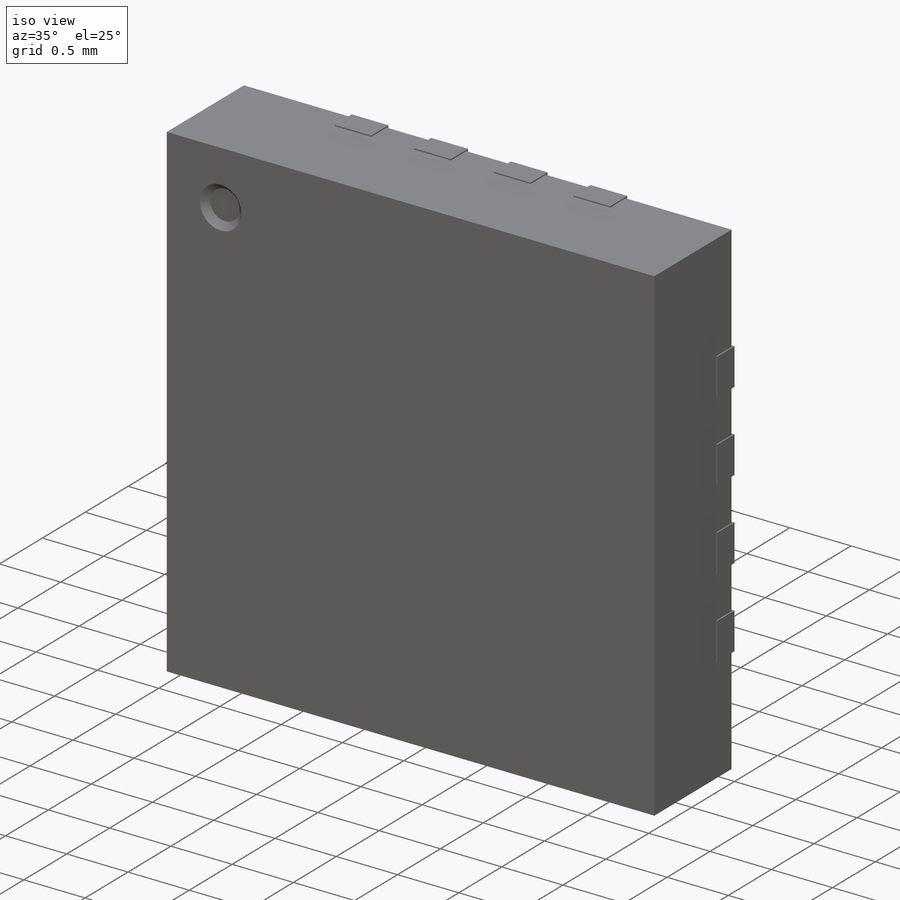
[diagram: iso view]
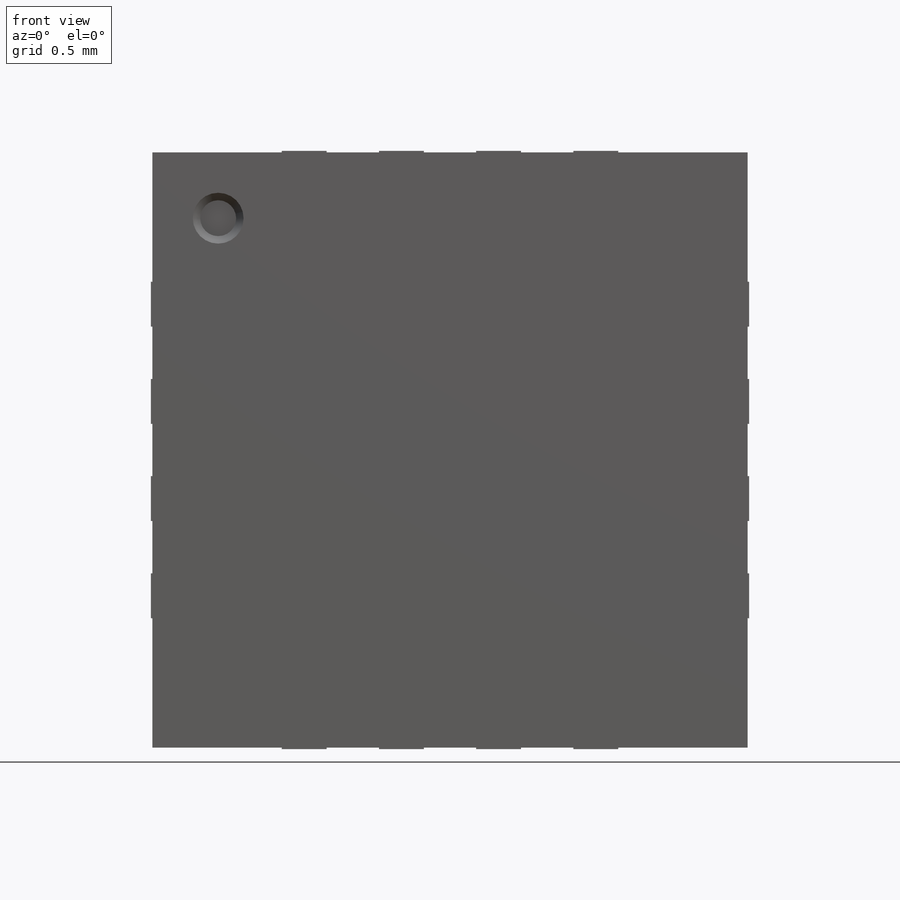
[diagram: front view]
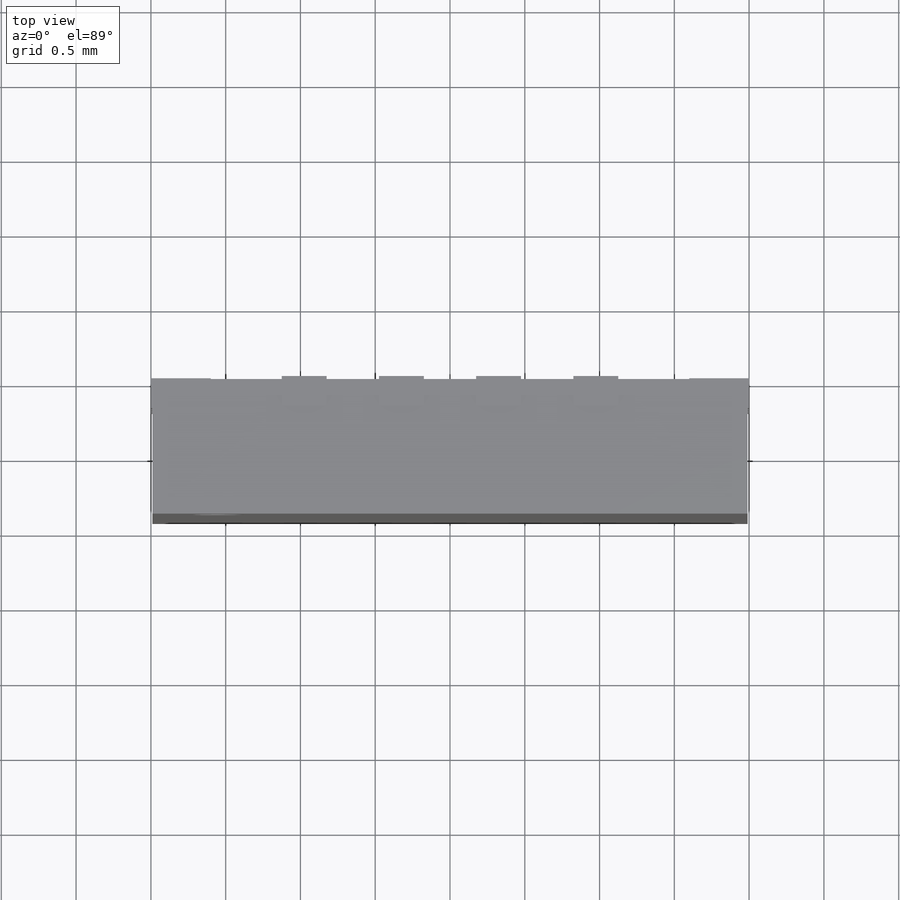
[diagram: top view]
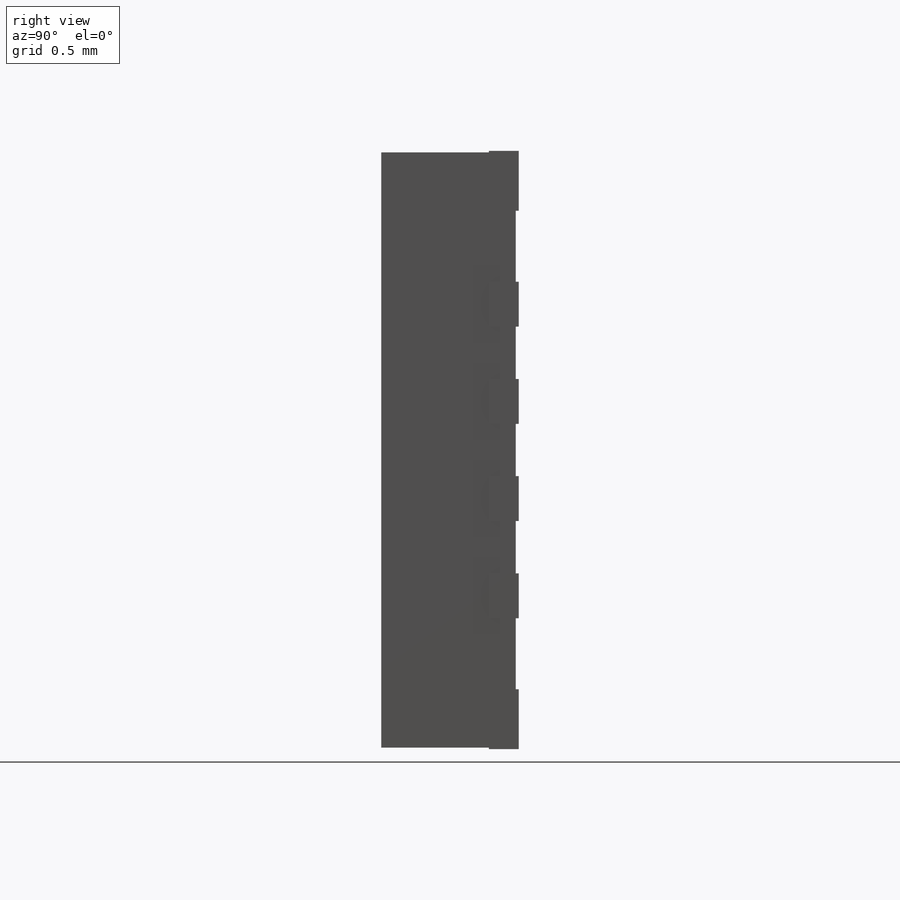
[diagram: right view]
SOLIDWORKS PART (.sldprt)
format: sldprt  version: not decoded by parser v0  size: 261,632 bytes
history: native  units: mm
features: plane x3, sketch x3, extrude x2, material x1, cut_extrude x1 (+10 scaffold rows collapsed)
feature tree (20):
  scaffold x10  (default folders/planes/origin — collapsed)
  material  "Material <not specified>"
  plane  "Спереди"
  plane  "Сверху"
  plane  "Справа"
  sketch  "Эскиз1"
  extrude  "Вытянуть1"  Depth=0.9mm
  sketch  "Эскиз2"  dims[D1=0.13mm]
  cut_extrude  "Вытянуть2"  Depth=0.05mm
  sketch  "Эскиз3"  dims[D1=0.2mm]
  extrude  "Вытянуть3"  Depth=0.2mm
decode coverage: 5 of 6 modeling features carry decoded parameters
note: suppression state not decoded; provenance and decode notes live in map.json
